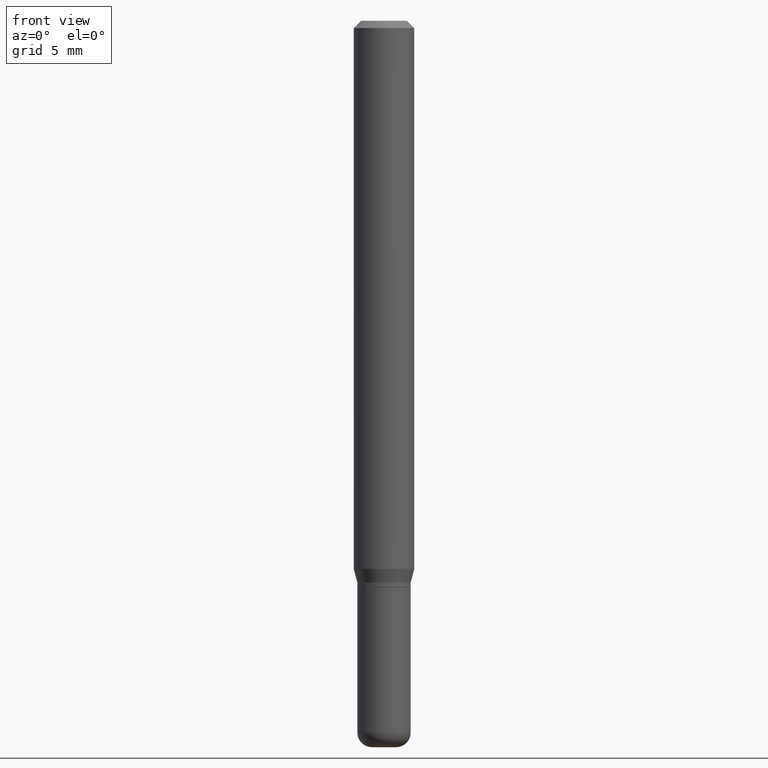
[diagram: clean part render]
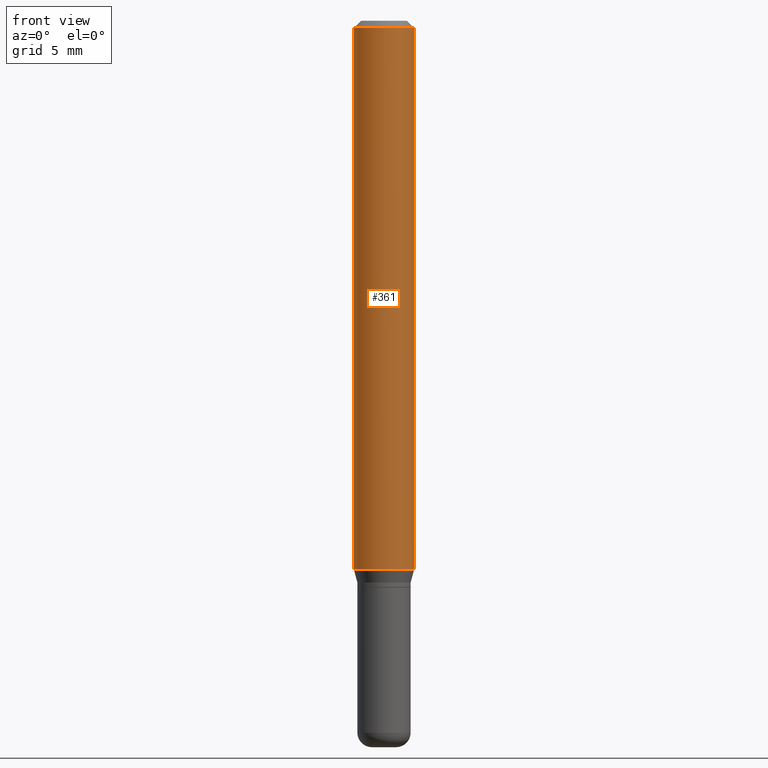
[diagram: same view with one face highlighted and labeled with its STEP entity id]
A machine part, front view. The second image highlights one B-rep face of the part: STEP entity #361.
In plain terms, the highlighted cylindrical surface (edge-blend (fillet) strip) has radius 1.5875 mm, axis along (-0, 0, 1).
Its self-contained STEP definition (entity closure, byte-faithful):
#18 = EDGE_CURVE ( 'NONE', #385, #346, #381, .T. ) ;
#38 = FACE_OUTER_BOUND ( 'NONE', #432, .T. ) ;
#42 = AXIS2_PLACEMENT_3D ( 'NONE', #397, #205, #200 ) ;
#46 = CARTESIAN_POINT ( 'NONE',  ( 3.668203209277632395E-31, -5.237222008264614861E-17, -0.01499999999999970281 ) ) ;
#59 = DIRECTION ( 'NONE',  ( 1.000000000000000000, -6.982962677686266711E-15, 0.000000000000000000 ) ) ;
#98 = DIRECTION ( 'NONE',  ( -2.445468806185136597E-29, 3.491481338843145583E-15, 1.000000000000000000 ) ) ;
#105 = AXIS2_PLACEMENT_3D ( 'NONE', #46, #98, #59 ) ;
#111 = DIRECTION ( 'NONE',  ( -2.445468806185136597E-29, 3.491481338843145583E-15, 1.000000000000000000 ) ) ;
#116 = ORIENTED_EDGE ( 'NONE', *, *, #18, .T. ) ;
#135 = LINE ( 'NONE', #264, #328 ) ;
#147 = CARTESIAN_POINT ( 'NONE',  ( 0.06250000000000000000, -4.364351673553916694E-16, 3.047610484872459871E-30 ) ) ;
#161 = CARTESIAN_POINT ( 'NONE',  ( 0.06250000000000000000, -4.388825627286632416E-15, -1.132009618943234042 ) ) ;
#193 = CARTESIAN_POINT ( 'NONE',  ( -0.06250000000000000000, -1.558292130156881494E-15, -0.01499999999999970281 ) ) ;
#200 = DIRECTION ( 'NONE',  ( 1.000000000000000000, -6.982962677686266711E-15, 4.876176775795935793E-29 ) ) ;
#205 = DIRECTION ( 'NONE',  ( -2.445468806185136597E-29, 3.491481338843145583E-15, 1.000000000000000000 ) ) ;
#212 = EDGE_CURVE ( 'NONE', #225, #249, #135, .T. ) ;
#225 = VERTEX_POINT ( 'NONE', #512 ) ;
#233 = DIRECTION ( 'NONE',  ( 1.000000000000000000, -6.982962677686270655E-15, 0.000000000000000000 ) ) ;
#241 = CYLINDRICAL_SURFACE ( 'NONE', #42, 0.06250000000000000000 ) ;
#249 = VERTEX_POINT ( 'NONE', #193 ) ;
#256 = CIRCLE ( 'NONE', #504, 0.06250000000000000000 ) ;
#264 = CARTESIAN_POINT ( 'NONE',  ( -0.06250000000000000000, 4.440892098500626162E-16, -3.074334431409316114E-30 ) ) ;
#273 = VECTOR ( 'NONE', #464, 39.37007874015748143 ) ;
#299 = CARTESIAN_POINT ( 'NONE',  ( 2.768294211427201767E-29, -3.952390459931241535E-15, -1.132009618943234042 ) ) ;
#303 = DIRECTION ( 'NONE',  ( -2.445468806185136877E-29, 3.491481338843145188E-15, 1.000000000000000000 ) ) ;
#304 = ORIENTED_EDGE ( 'NONE', *, *, #354, .T. ) ;
#312 = ORIENTED_EDGE ( 'NONE', *, *, #212, .F. ) ;
#328 = VECTOR ( 'NONE', #303, 39.37007874015748143 ) ;
#335 = ORIENTED_EDGE ( 'NONE', *, *, #473, .F. ) ;
#346 = VERTEX_POINT ( 'NONE', #509 ) ;
#354 = EDGE_CURVE ( 'NONE', #225, #385, #256, .T. ) ;
#361 = ADVANCED_FACE ( 'NONE', ( #38 ), #241, .T. ) ;
#381 = LINE ( 'NONE', #147, #273 ) ;
#385 = VERTEX_POINT ( 'NONE', #161 ) ;
#397 = CARTESIAN_POINT ( 'NONE',  ( 0.000000000000000000, 0.000000000000000000, 0.000000000000000000 ) ) ;
#432 = EDGE_LOOP ( 'NONE', ( #312, #304, #116, #335 ) ) ;
#449 = CIRCLE ( 'NONE', #105, 0.06250000000000000000 ) ;
#464 = DIRECTION ( 'NONE',  ( -2.445468806185136877E-29, 3.491481338843145188E-15, 1.000000000000000000 ) ) ;
#473 = EDGE_CURVE ( 'NONE', #249, #346, #449, .T. ) ;
#504 = AXIS2_PLACEMENT_3D ( 'NONE', #299, #111, #233 ) ;
#509 = CARTESIAN_POINT ( 'NONE',  ( 0.06250000000000000000, -4.888073874380378612E-16, -0.01499999999999970281 ) ) ;
#512 = CARTESIAN_POINT ( 'NONE',  ( -0.06250000000000000000, -3.508301250081179708E-15, -1.132009618943234042 ) ) ;